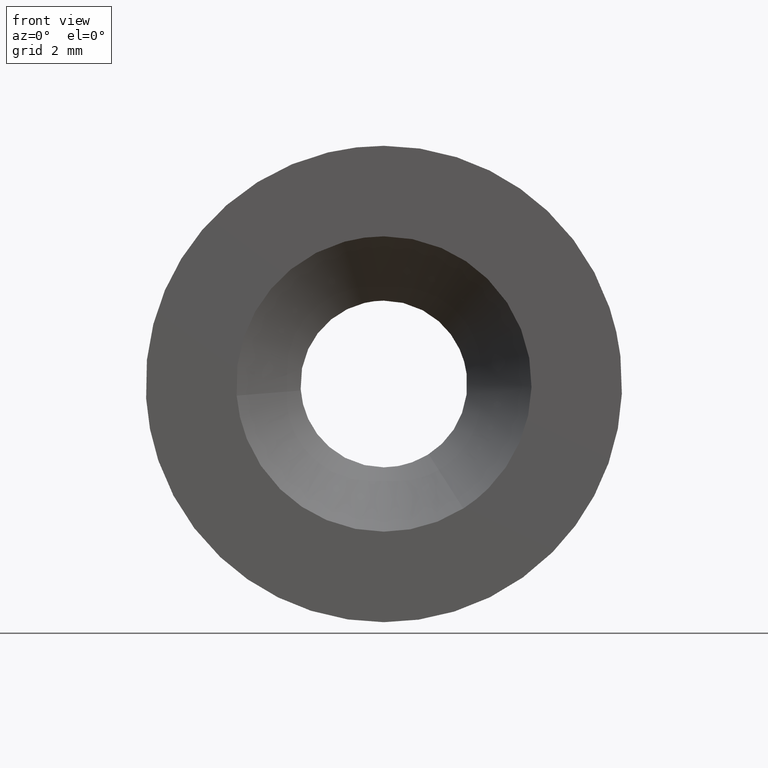
[diagram: clean part render]
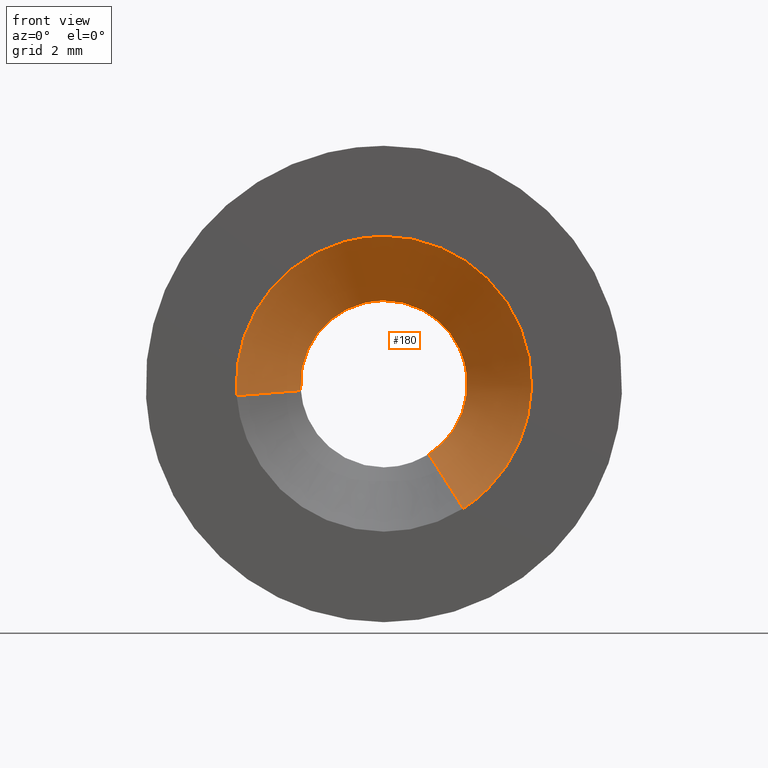
[diagram: same view with one face highlighted and labeled with its STEP entity id]
A machine part, front view. The second image highlights one B-rep face of the part: STEP entity #180.
In plain terms, the highlighted face is a freeform B-spline surface patch.
Its self-contained STEP definition (entity closure, byte-faithful):
#44=CARTESIAN_POINT('',(0.923086424252046,-4.616249999999998,-1.446867483863524));
#45=CARTESIAN_POINT('',(1.791808627370082,-4.616249999999998,-0.892631742796702));
#46=CARTESIAN_POINT('',(1.710959374019479,-4.616249999999998,0.134655423042915));
#47=CARTESIAN_POINT('',(1.576303950976564,-4.616249999999998,1.845614797062394));
#48=CARTESIAN_POINT('',(-0.134655423042915,-4.616249999999998,1.710959374019479));
#49=CARTESIAN_POINT('',(-1.845614797062394,-4.616249999999998,1.576303950976564));
#50=CARTESIAN_POINT('',(-1.710959374019479,-4.616249999999998,-0.134655423042915));
#51=CARTESIAN_POINT('',(1.685943735569011,-6.034593750000000,-2.642588068170039));
#52=CARTESIAN_POINT('',(3.272595556912071,-6.034593750000000,-1.630320688723759));
#53=CARTESIAN_POINT('',(3.124930843586526,-6.034593750000001,0.245937391099156));
#54=CARTESIAN_POINT('',(2.878993452487368,-6.034593750000001,3.370868234685682));
#55=CARTESIAN_POINT('',(-0.245937391099156,-6.034593750000001,3.124930843586526));
#56=CARTESIAN_POINT('',(-3.370868234685682,-6.034593750000001,2.878993452487368));
#57=CARTESIAN_POINT('',(-3.124930843586526,-6.034593750000001,-0.245937391099156));
#65=(BOUNDED_SURFACE()B_SPLINE_SURFACE(2,1,((#44,#51),(#45,#52),(#46,#53),(#47,#54),(#48,#55),(#49,#56),(#50,#57)),.UNSPECIFIED.,.F.,.F.,.U.)B_SPLINE_SURFACE_WITH_KNOTS((3,2,2,3),(2,2),(0.0,3.531624183081431,8.725189158201184,13.918754133320940),(0.0,2.005840967357117),.UNSPECIFIED.)GEOMETRIC_REPRESENTATION_ITEM()RATIONAL_B_SPLINE_SURFACE(((0.872532871172386,0.872532871172386),(0.800832611206852,0.800832611206852),(1.0,1.0),(0.707106781186548,0.707106781186548),(1.0,1.0),(0.707106781186548,0.707106781186548),(1.0,1.0)))REPRESENTATION_ITEM('')SURFACE());
#66=CARTESIAN_POINT('',(1.737767022411301,-4.650000000000009,0.206556955368015));
#67=VERTEX_POINT('',#66);
#68=CARTESIAN_POINT('',(0.941238888533195,-4.650000000000139,-1.475320085511372));
#69=VERTEX_POINT('',#68);
#70=CARTESIAN_POINT('',(1.737767022411301,-4.650000000000008,0.206556955368015));
#71=CARTESIAN_POINT('',(1.750000000000000,-4.650000000000000,0.103640716129135));
#72=CARTESIAN_POINT('',(1.750000000000000,-4.650000000000000,0.0));
#73=CARTESIAN_POINT('',(1.750000000000001,-4.650000000000000,-0.959338898022254));
#74=CARTESIAN_POINT('',(0.941238888533195,-4.650000000000139,-1.475320085511373));
#82=(BOUNDED_CURVE()B_SPLINE_CURVE(2,(#70,#71,#72,#73,#74),.UNSPECIFIED.,.F.,.U.)B_SPLINE_CURVE_WITH_KNOTS((3,2,3),(0.229562760926032,0.250000000000000,0.407950112627101),.UNSPECIFIED.)CURVE()GEOMETRIC_REPRESENTATION_ITEM()RATIONAL_B_SPLINE_CURVE((0.956027317524783,0.976056285055862,1.0,0.814949932402804,0.863729296954646))REPRESENTATION_ITEM(''));
#83=EDGE_CURVE('',#67,#69,#82,.T.);
#84=ORIENTED_EDGE('',*,*,#83,.T.);
#85=CARTESIAN_POINT('',(1.667337459685583,-6.000000000000142,-2.613424151478305));
#86=VERTEX_POINT('',#85);
#87=CARTESIAN_POINT('',(0.941238888533195,-4.650000000000139,-1.475320085511372));
#88=CARTESIAN_POINT('',(1.667337459685583,-6.000000000000142,-2.613424151478305));
#89=QUASI_UNIFORM_CURVE('',1,(#87,#88),.UNSPECIFIED.,.F.,.U.);
#90=EDGE_CURVE('',#69,#86,#89,.T.);
#91=ORIENTED_EDGE('',*,*,#90,.T.);
#92=CARTESIAN_POINT('',(0.0,-6.0,3.100000000000000));
#93=VERTEX_POINT('',#92);
#94=CARTESIAN_POINT('',(0.0,-6.0,3.100000000000000));
#95=CARTESIAN_POINT('',(3.100000000000000,-6.0,3.100000000000000));
#96=CARTESIAN_POINT('',(3.100000000000000,-6.0,0.0));
#97=CARTESIAN_POINT('',(3.100000000000000,-6.0,-1.699400333642098));
#98=CARTESIAN_POINT('',(1.667337459685584,-6.000000000000142,-2.613424151478305));
#106=(BOUNDED_CURVE()B_SPLINE_CURVE(2,(#94,#95,#96,#97,#98),.UNSPECIFIED.,.F.,.U.)B_SPLINE_CURVE_WITH_KNOTS((3,2,3),(0.0,0.250000000000000,0.407950112627304),.UNSPECIFIED.)CURVE()GEOMETRIC_REPRESENTATION_ITEM()RATIONAL_B_SPLINE_CURVE((1.0,0.707106781186547,1.0,0.814949932402566,0.863729296954772))REPRESENTATION_ITEM(''));
#107=EDGE_CURVE('',#93,#86,#106,.T.);
#108=ORIENTED_EDGE('',*,*,#107,.F.);
#109=CARTESIAN_POINT('',(-3.090443734573221,-6.000000000001325,-0.243223196766532));
#110=VERTEX_POINT('',#109);
#111=CARTESIAN_POINT('',(-3.090443734573222,-6.000000000001325,-0.243223196766532));
#112=CARTESIAN_POINT('',(-3.100000000000000,-6.0,-0.121799331733931));
#113=CARTESIAN_POINT('',(-3.100000000000000,-6.0,0.0));
#114=CARTESIAN_POINT('',(-3.100000000000000,-6.0,3.100000000000000));
#115=CARTESIAN_POINT('',(0.0,-6.0,3.100000000000000));
#123=(BOUNDED_CURVE()B_SPLINE_CURVE(2,(#111,#112,#113,#114,#115),.UNSPECIFIED.,.F.,.U.)B_SPLINE_CURVE_WITH_KNOTS((3,2,3),(0.736331300631646,0.750000000000000,1.0),.UNSPECIFIED.)CURVE()GEOMETRIC_REPRESENTATION_ITEM()RATIONAL_B_SPLINE_CURVE((0.969723356169475,0.983986122580037,1.0,0.707106781186547,1.0))REPRESENTATION_ITEM(''));
#124=EDGE_CURVE('',#110,#93,#123,.T.);
#125=ORIENTED_EDGE('',*,*,#124,.F.);
#126=CARTESIAN_POINT('',(-1.744605334033341,-4.650000000000918,-0.137303417530764));
#127=VERTEX_POINT('',#126);
#128=CARTESIAN_POINT('',(-1.744605334033341,-4.650000000000918,-0.137303417530764));
#129=CARTESIAN_POINT('',(-3.090443734573221,-6.000000000001325,-0.243223196766532));
#130=QUASI_UNIFORM_CURVE('',1,(#128,#129),.UNSPECIFIED.,.F.,.U.);
#131=EDGE_CURVE('',#127,#110,#130,.T.);
#132=ORIENTED_EDGE('',*,*,#131,.F.);
#133=CARTESIAN_POINT('',(-1.746735897237812,-4.650000000000000,-0.106834944193444));
#134=VERTEX_POINT('',#133);
#135=CARTESIAN_POINT('',(-1.744605334033341,-4.650000000000918,-0.137303417530764));
#136=CARTESIAN_POINT('',(-1.745803562803911,-4.650000000000000,-0.122078477440978));
#137=CARTESIAN_POINT('',(-1.746735897237812,-4.650000000000000,-0.106834944193444));
#145=(BOUNDED_CURVE()B_SPLINE_CURVE(2,(#135,#136,#137),.UNSPECIFIED.,.F.,.U.)B_SPLINE_CURVE_WITH_KNOTS((3,3),(0.736331300631399,0.739332962240497),.UNSPECIFIED.)CURVE()GEOMETRIC_REPRESENTATION_ITEM()RATIONAL_B_SPLINE_CURVE((0.969723356168960,0.972855475562349,0.976072041670049))REPRESENTATION_ITEM(''));
#146=EDGE_CURVE('',#127,#134,#145,.T.);
#147=ORIENTED_EDGE('',*,*,#146,.T.);
#148=CARTESIAN_POINT('',(0.0,-4.650000000000000,1.750000000000000));
#149=VERTEX_POINT('',#148);
#150=CARTESIAN_POINT('',(-1.746735897237812,-4.650000000000000,-0.106834944193444));
#151=CARTESIAN_POINT('',(-1.750000000000000,-4.650000000000000,-0.053467335779996));
#152=CARTESIAN_POINT('',(-1.750000000000000,-4.650000000000000,0.0));
#153=CARTESIAN_POINT('',(-1.750000000000000,-4.649999999999999,1.750000000000000));
#154=CARTESIAN_POINT('',(0.0,-4.650000000000000,1.750000000000000));
#162=(BOUNDED_CURVE()B_SPLINE_CURVE(2,(#150,#151,#152,#153,#154),.UNSPECIFIED.,.F.,.U.)B_SPLINE_CURVE_WITH_KNOTS((3,2,3),(0.739332962240498,0.750000000000000,1.0),.UNSPECIFIED.)CURVE()GEOMETRIC_REPRESENTATION_ITEM()RATIONAL_B_SPLINE_CURVE((0.976072041670050,0.987502787901659,1.0,0.707106781186547,1.0))REPRESENTATION_ITEM(''));
#163=EDGE_CURVE('',#134,#149,#162,.T.);
#164=ORIENTED_EDGE('',*,*,#163,.T.);
#165=CARTESIAN_POINT('',(0.0,-4.650000000000000,1.750000000000000));
#166=CARTESIAN_POINT('',(1.554308082307627,-4.650000000000000,1.750000000000000));
#167=CARTESIAN_POINT('',(1.737767022411301,-4.650000000000008,0.206556955368015));
#175=(BOUNDED_CURVE()B_SPLINE_CURVE(2,(#165,#166,#167),.UNSPECIFIED.,.F.,.U.)B_SPLINE_CURVE_WITH_KNOTS((3,3),(0.0,0.229562760926032),.UNSPECIFIED.)CURVE()GEOMETRIC_REPRESENTATION_ITEM()RATIONAL_B_SPLINE_CURVE((1.0,0.731050496130685,0.956027317524783))REPRESENTATION_ITEM(''));
#176=EDGE_CURVE('',#149,#67,#175,.T.);
#177=ORIENTED_EDGE('',*,*,#176,.T.);
#178=EDGE_LOOP('',(#84,#91,#108,#125,#132,#147,#164,#177));
#179=FACE_OUTER_BOUND('',#178,.T.);
#180=ADVANCED_FACE('',(#179),#65,.F.);